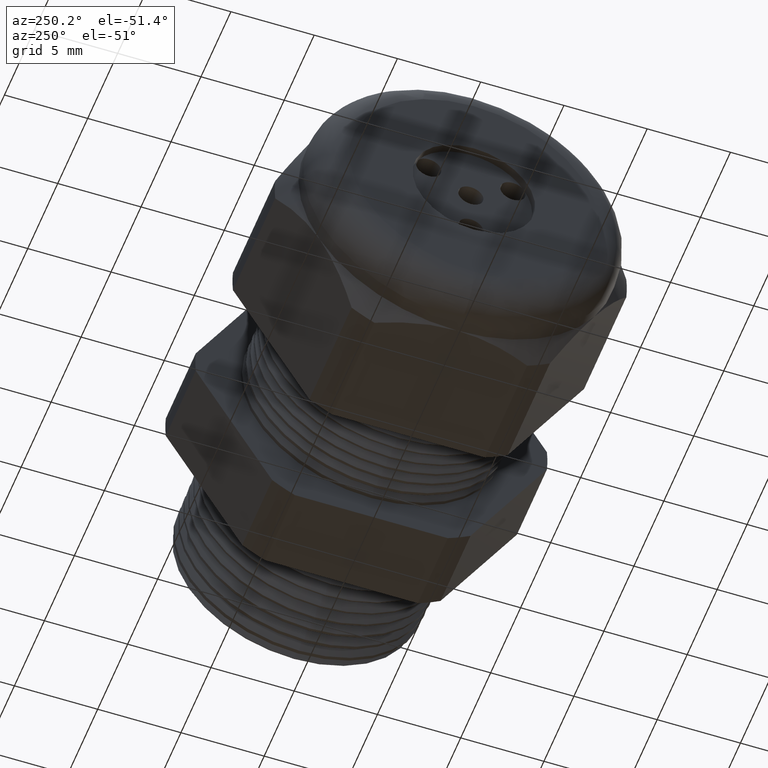
[diagram: clean part render]
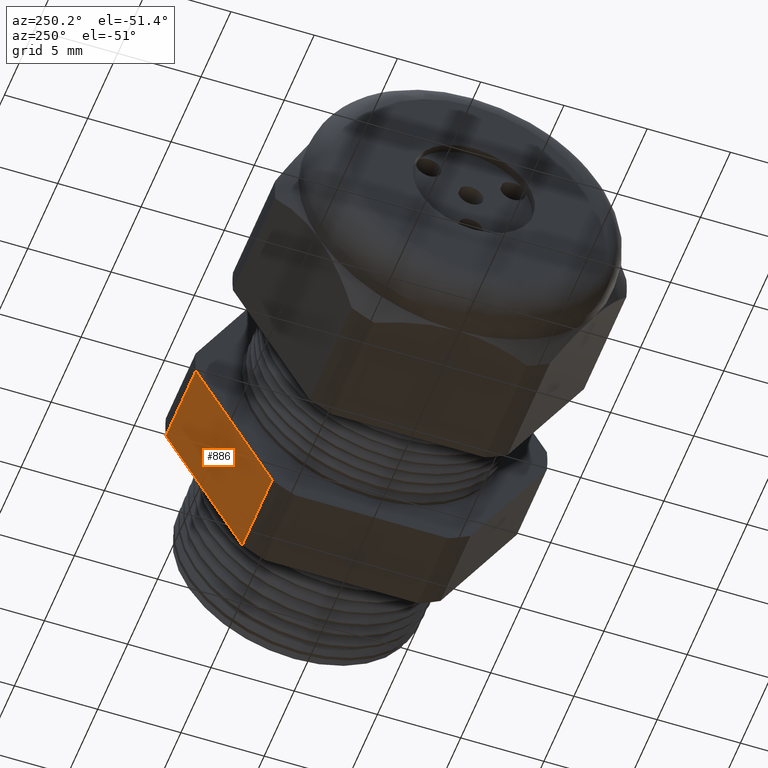
[diagram: same view with one face highlighted and labeled with its STEP entity id]
A machine part, auxiliary view. The second image highlights one B-rep face of the part: STEP entity #886.
In plain terms, the highlighted planar face has unit normal (0, 0.866, -0.5).
Its self-contained STEP definition (entity closure, byte-faithful):
#794 = EDGE_CURVE ( 'NONE', #795, #796, #2985, .T. ) ;
#795 = VERTEX_POINT ( 'NONE', #2973 ) ;
#796 = VERTEX_POINT ( 'NONE', #2972 ) ;
#886 = ADVANCED_FACE ( 'NONE', ( #3163 ), #3162, .T. ) ;
#939 = EDGE_LOOP ( 'NONE', ( #940, #943, #944, #947 ) ) ;
#940 = ORIENTED_EDGE ( 'NONE', *, *, #941, .F. ) ;
#941 = EDGE_CURVE ( 'NONE', #796, #942, #3263, .T. ) ;
#942 = VERTEX_POINT ( 'NONE', #3259 ) ;
#943 = ORIENTED_EDGE ( 'NONE', *, *, #794, .F. ) ;
#944 = ORIENTED_EDGE ( 'NONE', *, *, #945, .T. ) ;
#945 = EDGE_CURVE ( 'NONE', #795, #946, #3258, .T. ) ;
#946 = VERTEX_POINT ( 'NONE', #3254 ) ;
#947 = ORIENTED_EDGE ( 'NONE', *, *, #948, .F. ) ;
#948 = EDGE_CURVE ( 'NONE', #942, #946, #3317, .T. ) ;
#2972 = CARTESIAN_POINT ( 'NONE',  ( -0.3100000000000000000, 0.4150909474475088000, -0.03104138925901222000 ) ) ;
#2973 = CARTESIAN_POINT ( 'NONE',  ( -0.3100000000000000000, 0.2344281053908202900, -0.3439586107409879900 ) ) ;
#2974 = DIRECTION ( 'NONE',  ( 0.0000000000000000000, 0.5000000000000001100, 0.8660254037844386000 ) ) ;
#2975 = VECTOR ( 'NONE', #2974, 39.37007874015748900 ) ;
#2976 = CARTESIAN_POINT ( 'NONE',  ( -0.3100000000000000000, 0.5122595264191646100, 0.1372595264191645000 ) ) ;
#2985 = LINE ( 'NONE', #2976, #2975 ) ;
#3158 = DIRECTION ( 'NONE',  ( 0.0000000000000000000, 0.5000000000000002200, 0.8660254037844386000 ) ) ;
#3159 = DIRECTION ( 'NONE',  ( 0.0000000000000000000, 0.8660254037844386000, -0.5000000000000002200 ) ) ;
#3160 = CARTESIAN_POINT ( 'NONE',  ( 0.0000000000000000000, 0.4150909474475088000, -0.03104138925901223100 ) ) ;
#3161 = AXIS2_PLACEMENT_3D ( 'NONE', #3160, #3159, #3158 ) ;
#3162 = PLANE ( 'NONE',  #3161 ) ;
#3163 = FACE_OUTER_BOUND ( 'NONE', #939, .T. ) ;
#3254 = CARTESIAN_POINT ( 'NONE',  ( -0.5068503937007874400, 0.2344281053908202900, -0.3439586107409878800 ) ) ;
#3255 = DIRECTION ( 'NONE',  ( -1.000000000000000000, 0.0000000000000000000, 0.0000000000000000000 ) ) ;
#3256 = VECTOR ( 'NONE', #3255, 39.37007874015748100 ) ;
#3257 = CARTESIAN_POINT ( 'NONE',  ( 0.0000000000000000000, 0.2344281053908202900, -0.3439586107409879900 ) ) ;
#3258 = LINE ( 'NONE', #3257, #3256 ) ;
#3259 = CARTESIAN_POINT ( 'NONE',  ( -0.5068503937007874400, 0.4150909474475088000, -0.03104138925901223100 ) ) ;
#3260 = DIRECTION ( 'NONE',  ( -1.000000000000000000, 0.0000000000000000000, 0.0000000000000000000 ) ) ;
#3261 = VECTOR ( 'NONE', #3260, 39.37007874015748100 ) ;
#3262 = CARTESIAN_POINT ( 'NONE',  ( 0.0000000000000000000, 0.4150909474475088000, -0.03104138925901223100 ) ) ;
#3263 = LINE ( 'NONE', #3262, #3261 ) ;
#3314 = DIRECTION ( 'NONE',  ( 0.0000000000000000000, -0.5000000000000001100, -0.8660254037844386000 ) ) ;
#3315 = VECTOR ( 'NONE', #3314, 39.37007874015748900 ) ;
#3316 = CARTESIAN_POINT ( 'NONE',  ( -0.5068503937007874400, 0.5122595264191646100, 0.1372595264191645000 ) ) ;
#3317 = LINE ( 'NONE', #3316, #3315 ) ;